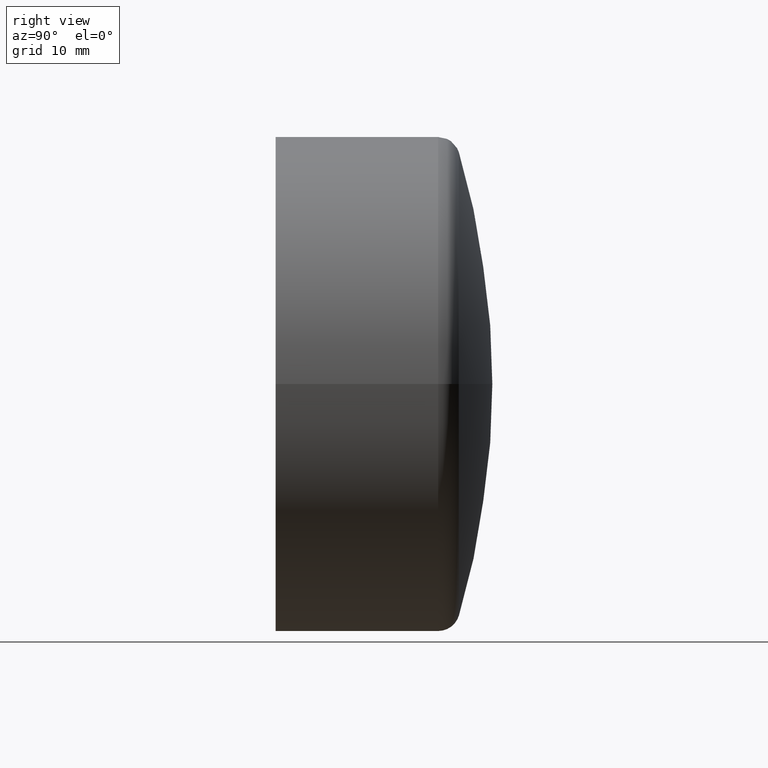
[diagram: clean part render]
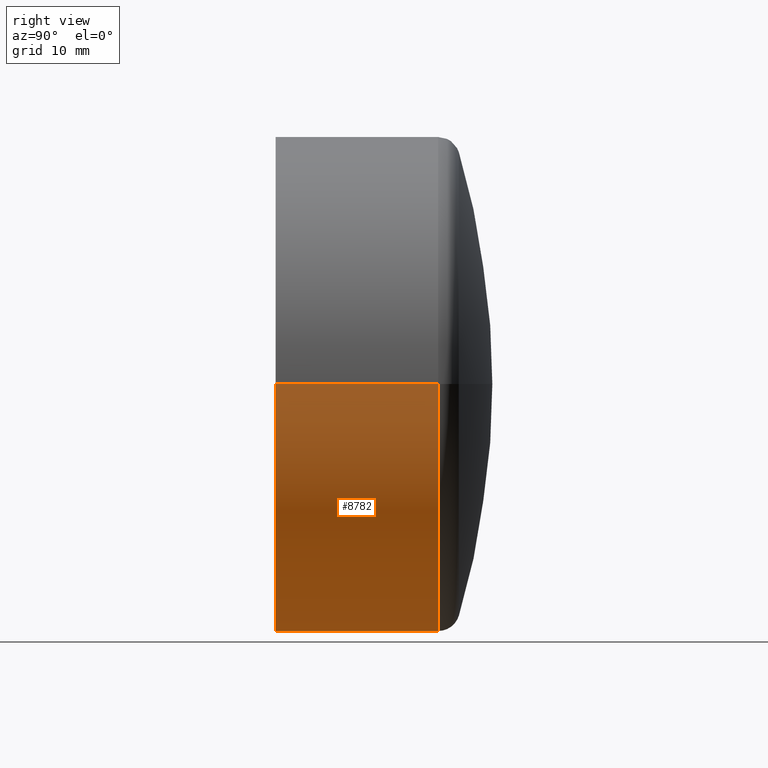
[diagram: same view with one face highlighted and labeled with its STEP entity id]
A machine part, right view. The second image highlights one B-rep face of the part: STEP entity #8782.
In plain terms, the highlighted cylindrical surface (partial cylindrical patch) has radius 22.8 mm, axis along (0, 1, -0).
Its self-contained STEP definition (entity closure, byte-faithful):
#393 = VECTOR ( 'NONE', #6032, 1000.000000000000000 ) ;
#780 = EDGE_CURVE ( 'NONE', #7822, #5325, #918, .T. ) ;
#918 = LINE ( 'NONE', #2776, #4501 ) ;
#1107 = CARTESIAN_POINT ( 'NONE',  ( -22.80000000000000100, 6.982612738733014000E-015, 0.0000000000000000000 ) ) ;
#1264 = CYLINDRICAL_SURFACE ( 'NONE', #3144, 22.80000000000000100 ) ;
#1886 = DIRECTION ( 'NONE',  ( 1.540862187183947000E-016, 1.000000000000000000, -0.0000000000000000000 ) ) ;
#2201 = VERTEX_POINT ( 'NONE', #2594 ) ;
#2594 = CARTESIAN_POINT ( 'NONE',  ( 22.80000000000000100, -4.371883482578529400E-017, 2.792194702055965200E-015 ) ) ;
#2721 = ORIENTED_EDGE ( 'NONE', *, *, #780, .T. ) ;
#2776 = CARTESIAN_POINT ( 'NONE',  ( -22.79999999999999700, 18.50000000000000700, 0.0000000000000000000 ) ) ;
#3054 = LINE ( 'NONE', #10020, #393 ) ;
#3144 = AXIS2_PLACEMENT_3D ( 'NONE', #9634, #1886, #10649 ) ;
#3577 = CARTESIAN_POINT ( 'NONE',  ( 2.311293280775920800E-015, 15.00000000000000400, 0.0000000000000000000 ) ) ;
#4011 = EDGE_LOOP ( 'NONE', ( #4050, #8918, #2721, #8054 ) ) ;
#4026 = CIRCLE ( 'NONE', #10103, 22.80000000000000100 ) ;
#4050 = ORIENTED_EDGE ( 'NONE', *, *, #12071, .F. ) ;
#4501 = VECTOR ( 'NONE', #7717, 1000.000000000000000 ) ;
#4574 = DIRECTION ( 'NONE',  ( -1.000000000000000000, 1.521687259628778000E-016, 0.0000000000000000000 ) ) ;
#5325 = VERTEX_POINT ( 'NONE', #10196 ) ;
#6032 = DIRECTION ( 'NONE',  ( 1.540862187183947000E-016, 1.000000000000000000, -0.0000000000000000000 ) ) ;
#7717 = DIRECTION ( 'NONE',  ( 1.540862187183947000E-016, 1.000000000000000000, -0.0000000000000000000 ) ) ;
#7822 = VERTEX_POINT ( 'NONE', #1107 ) ;
#7868 = VERTEX_POINT ( 'NONE', #11264 ) ;
#8054 = ORIENTED_EDGE ( 'NONE', *, *, #8510, .F. ) ;
#8438 = DIRECTION ( 'NONE',  ( 1.540862187183947000E-016, 1.000000000000000000, -0.0000000000000000000 ) ) ;
#8510 = EDGE_CURVE ( 'NONE', #7868, #5325, #11465, .T. ) ;
#8782 = ADVANCED_FACE ( 'NONE', ( #11299 ), #1264, .T. ) ;
#8918 = ORIENTED_EDGE ( 'NONE', *, *, #10187, .T. ) ;
#9634 = CARTESIAN_POINT ( 'NONE',  ( 2.850595046290302200E-015, 18.50000000000000400, 0.0000000000000000000 ) ) ;
#10020 = CARTESIAN_POINT ( 'NONE',  ( 22.80000000000000400, 18.50000000000000000, 2.792194702055965200E-015 ) ) ;
#10103 = AXIS2_PLACEMENT_3D ( 'NONE', #12357, #8438, #11290 ) ;
#10187 = EDGE_CURVE ( 'NONE', #2201, #7822, #4026, .T. ) ;
#10196 = CARTESIAN_POINT ( 'NONE',  ( -22.79999999999999400, 15.00000000000000700, 0.0000000000000000000 ) ) ;
#10649 = DIRECTION ( 'NONE',  ( -1.000000000000000000, 1.521687259628778000E-016, 0.0000000000000000000 ) ) ;
#11264 = CARTESIAN_POINT ( 'NONE',  ( 22.80000000000000100, 15.00000000000000000, 2.792194702055964800E-015 ) ) ;
#11290 = DIRECTION ( 'NONE',  ( -1.000000000000000000, 1.540862187183947000E-016, 0.0000000000000000000 ) ) ;
#11299 = FACE_OUTER_BOUND ( 'NONE', #4011, .T. ) ;
#11413 = AXIS2_PLACEMENT_3D ( 'NONE', #3577, #12291, #4574 ) ;
#11465 = CIRCLE ( 'NONE', #11413, 22.80000000000000100 ) ;
#12071 = EDGE_CURVE ( 'NONE', #2201, #7868, #3054, .T. ) ;
#12291 = DIRECTION ( 'NONE',  ( 1.540862187183947000E-016, 1.000000000000000000, -0.0000000000000000000 ) ) ;
#12357 = CARTESIAN_POINT ( 'NONE',  ( 3.851859888774471700E-031, 3.469446951953614200E-015, 0.0000000000000000000 ) ) ;